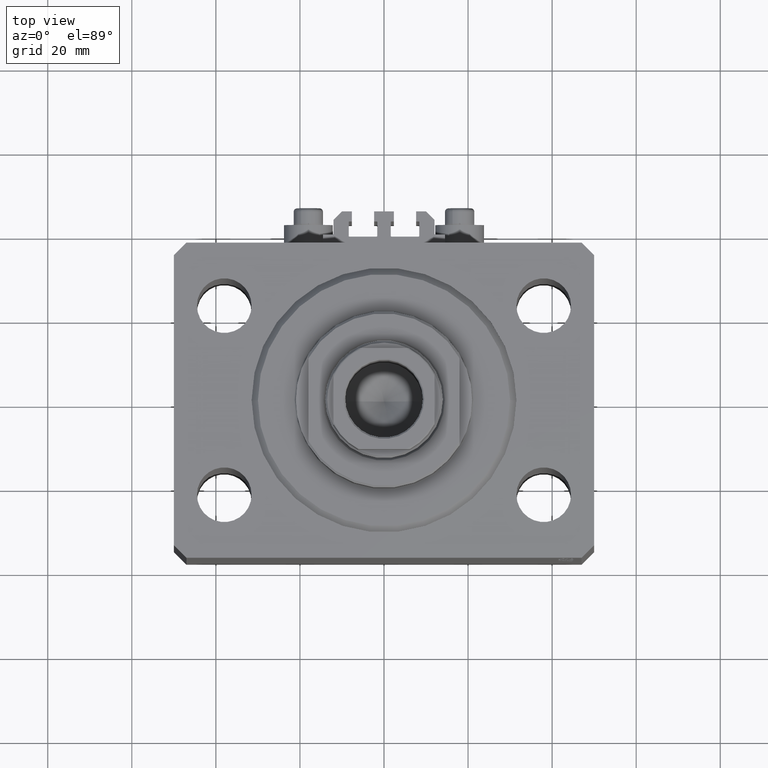
[diagram: clean part render]
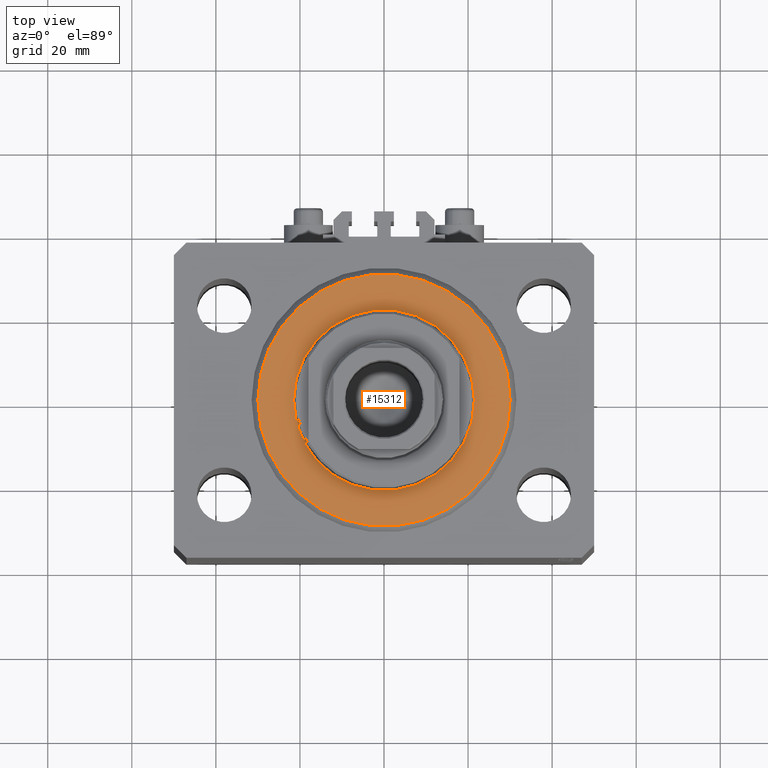
[diagram: same view with one face highlighted and labeled with its STEP entity id]
A machine part, top view. The second image highlights one B-rep face of the part: STEP entity #15312.
In plain terms, the highlighted planar face has unit normal (0, 0, -1).
Its self-contained STEP definition (entity closure, byte-faithful):
#1638 = CIRCLE ( 'NONE', #2402, 29.99999999999999289 ) ;
#2053 = AXIS2_PLACEMENT_3D ( 'NONE', #37085, #30362, #34415 ) ;
#2402 = AXIS2_PLACEMENT_3D ( 'NONE', #7469, #28772, #43373 ) ;
#2940 = ORIENTED_EDGE ( 'NONE', *, *, #16691, .T. ) ;
#3580 = CARTESIAN_POINT ( 'NONE',  ( 21.50000000000000000, 0.000000000000000000, -2.168404344971008868E-16 ) ) ;
#7116 = EDGE_LOOP ( 'NONE', ( #40918, #32772 ) ) ;
#7249 = FACE_BOUND ( 'NONE', #42037, .T. ) ;
#7469 = CARTESIAN_POINT ( 'NONE',  ( 0.000000000000000000, 0.000000000000000000, 0.000000000000000000 ) ) ;
#10811 = CIRCLE ( 'NONE', #38304, 29.99999999999999289 ) ;
#14837 = CARTESIAN_POINT ( 'NONE',  ( -21.50000000000000000, 2.632990618166809630E-15, -2.168404344971008868E-16 ) ) ;
#15312 = ADVANCED_FACE ( 'NONE', ( #7249, #22297 ), #18939, .F. ) ;
#16667 = ORIENTED_EDGE ( 'NONE', *, *, #31906, .T. ) ;
#16691 = EDGE_CURVE ( 'NONE', #31814, #22048, #27264, .T. ) ;
#17757 = VERTEX_POINT ( 'NONE', #37180 ) ;
#18939 = PLANE ( 'NONE',  #36450 ) ;
#19114 = DIRECTION ( 'NONE',  ( 1.000000000000000000, 0.000000000000000000, 0.000000000000000000 ) ) ;
#20102 = CARTESIAN_POINT ( 'NONE',  ( 29.99999999999999289, 0.000000000000000000, 0.000000000000000000 ) ) ;
#21106 = VERTEX_POINT ( 'NONE', #20102 ) ;
#22048 = VERTEX_POINT ( 'NONE', #3580 ) ;
#22297 = FACE_OUTER_BOUND ( 'NONE', #7116, .T. ) ;
#24049 = DIRECTION ( 'NONE',  ( 0.000000000000000000, 0.000000000000000000, 1.000000000000000000 ) ) ;
#26108 = AXIS2_PLACEMENT_3D ( 'NONE', #33471, #24049, #19114 ) ;
#26668 = CARTESIAN_POINT ( 'NONE',  ( 0.000000000000000000, 0.000000000000000000, 0.000000000000000000 ) ) ;
#27264 = CIRCLE ( 'NONE', #2053, 21.50000000000000000 ) ;
#28772 = DIRECTION ( 'NONE',  ( -0.000000000000000000, -0.000000000000000000, -1.000000000000000000 ) ) ;
#29254 = DIRECTION ( 'NONE',  ( 0.000000000000000000, 0.000000000000000000, 1.000000000000000000 ) ) ;
#29950 = CIRCLE ( 'NONE', #26108, 21.50000000000000000 ) ;
#30362 = DIRECTION ( 'NONE',  ( 0.000000000000000000, 0.000000000000000000, 1.000000000000000000 ) ) ;
#30508 = EDGE_CURVE ( 'NONE', #17757, #21106, #10811, .T. ) ;
#31611 = EDGE_CURVE ( 'NONE', #21106, #17757, #1638, .T. ) ;
#31814 = VERTEX_POINT ( 'NONE', #14837 ) ;
#31906 = EDGE_CURVE ( 'NONE', #22048, #31814, #29950, .T. ) ;
#32772 = ORIENTED_EDGE ( 'NONE', *, *, #30508, .T. ) ;
#33471 = CARTESIAN_POINT ( 'NONE',  ( 0.000000000000000000, 0.000000000000000000, 0.000000000000000000 ) ) ;
#34321 = DIRECTION ( 'NONE',  ( -0.000000000000000000, -0.000000000000000000, -1.000000000000000000 ) ) ;
#34415 = DIRECTION ( 'NONE',  ( 1.000000000000000000, 0.000000000000000000, 0.000000000000000000 ) ) ;
#36450 = AXIS2_PLACEMENT_3D ( 'NONE', #44556, #29254, #43856 ) ;
#37085 = CARTESIAN_POINT ( 'NONE',  ( 0.000000000000000000, 0.000000000000000000, 0.000000000000000000 ) ) ;
#37180 = CARTESIAN_POINT ( 'NONE',  ( -29.99999999999999289, 3.765788907378110539E-15, 0.000000000000000000 ) ) ;
#38304 = AXIS2_PLACEMENT_3D ( 'NONE', #26668, #34321, #41279 ) ;
#40918 = ORIENTED_EDGE ( 'NONE', *, *, #31611, .T. ) ;
#41279 = DIRECTION ( 'NONE',  ( 1.000000000000000000, 0.000000000000000000, 0.000000000000000000 ) ) ;
#42037 = EDGE_LOOP ( 'NONE', ( #16667, #2940 ) ) ;
#43373 = DIRECTION ( 'NONE',  ( 1.000000000000000000, 0.000000000000000000, 0.000000000000000000 ) ) ;
#43856 = DIRECTION ( 'NONE',  ( 1.000000000000000000, 0.000000000000000000, -0.000000000000000000 ) ) ;
#44556 = CARTESIAN_POINT ( 'NONE',  ( 0.000000000000000000, 0.000000000000000000, 0.000000000000000000 ) ) ;